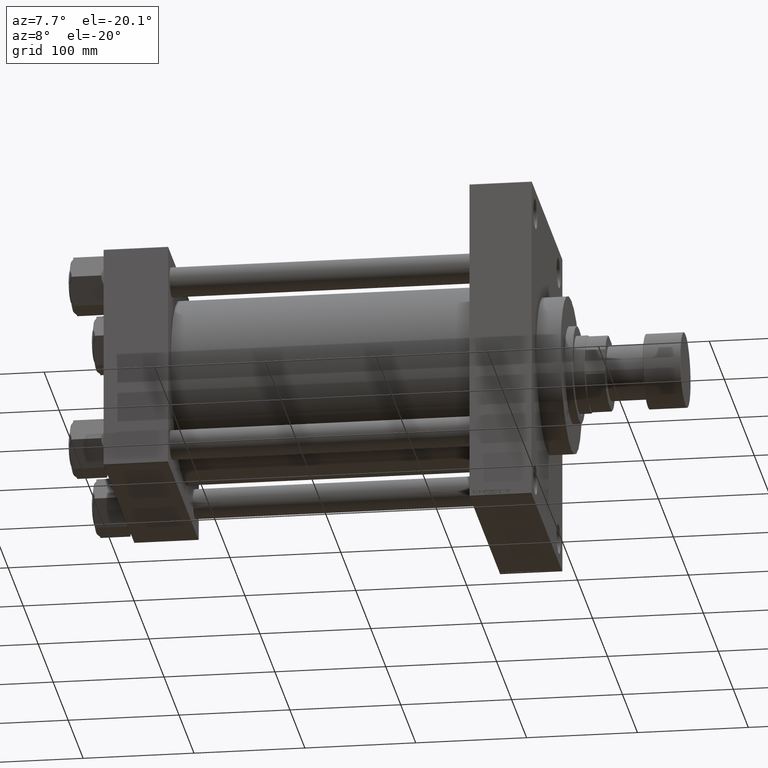
[diagram: clean part render]
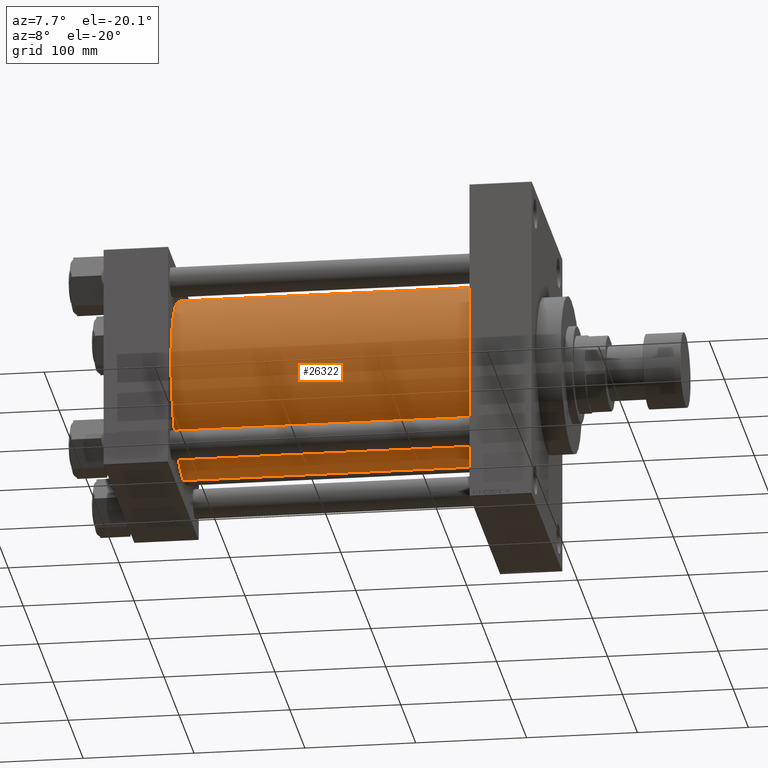
[diagram: same view with one face highlighted and labeled with its STEP entity id]
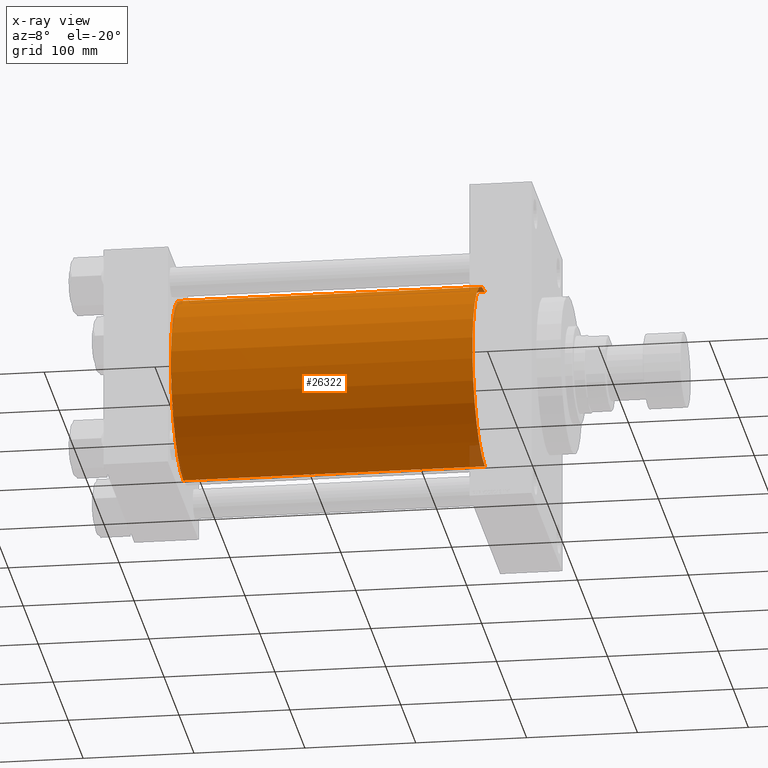
[diagram: x-ray of the same camera — body ghosted, the highlighted face saturated]
A machine part, auxiliary view. The second image highlights one B-rep face of the part: STEP entity #26322.
The next image is the same camera in x-ray: the body ghosted, the highlighted face saturated — about 1% of this face is hidden behind the body in this view.
In plain terms, the highlighted cylindrical surface (partial cylindrical patch) has radius 83 mm, axis along (-1, -0, -0).
Its self-contained STEP definition (entity closure, byte-faithful):
#534 = VERTEX_POINT ( 'NONE', #45623 ) ;
#1363 = CIRCLE ( 'NONE', #30235, 83.00000000000000000 ) ;
#1392 = AXIS2_PLACEMENT_3D ( 'NONE', #34914, #11980, #15649 ) ;
#3497 = LINE ( 'NONE', #11070, #7141 ) ;
#7141 = VECTOR ( 'NONE', #45255, 1000.000000000000000 ) ;
#9710 = CARTESIAN_POINT ( 'NONE',  ( 57.99999999999999289, -2.602085213965210642E-15, 0.000000000000000000 ) ) ;
#10246 = ORIENTED_EDGE ( 'NONE', *, *, #15123, .F. ) ;
#10683 = DIRECTION ( 'NONE',  ( 0.000000000000000000, 0.000000000000000000, 1.000000000000000000 ) ) ;
#11070 = CARTESIAN_POINT ( 'NONE',  ( 330.0000000000000000, -2.602085213965210642E-15, 83.00000000000000000 ) ) ;
#11980 = DIRECTION ( 'NONE',  ( 1.000000000000000000, 0.000000000000000000, 0.000000000000000000 ) ) ;
#12286 = VECTOR ( 'NONE', #34491, 1000.000000000000000 ) ;
#14806 = EDGE_CURVE ( 'NONE', #534, #15048, #1363, .T. ) ;
#15048 = VERTEX_POINT ( 'NONE', #23017 ) ;
#15123 = EDGE_CURVE ( 'NONE', #35594, #15048, #23497, .T. ) ;
#15241 = ORIENTED_EDGE ( 'NONE', *, *, #16002, .F. ) ;
#15649 = DIRECTION ( 'NONE',  ( 0.000000000000000000, 0.000000000000000000, -1.000000000000000000 ) ) ;
#15691 = EDGE_LOOP ( 'NONE', ( #10246, #15241, #37410, #31318 ) ) ;
#16002 = EDGE_CURVE ( 'NONE', #22546, #35594, #45840, .T. ) ;
#21147 = CARTESIAN_POINT ( 'NONE',  ( 330.0000000000000000, -2.602085213965210642E-15, 83.00000000000000000 ) ) ;
#22546 = VERTEX_POINT ( 'NONE', #21147 ) ;
#23017 = CARTESIAN_POINT ( 'NONE',  ( 57.99999999999999289, 7.562483218957820855E-15, -83.00000000000000000 ) ) ;
#23497 = LINE ( 'NONE', #31773, #12286 ) ;
#26322 = ADVANCED_FACE ( 'NONE', ( #33912 ), #30004, .T. ) ;
#27387 = EDGE_CURVE ( 'NONE', #22546, #534, #3497, .T. ) ;
#30004 = CYLINDRICAL_SURFACE ( 'NONE', #47646, 83.00000000000000000 ) ;
#30235 = AXIS2_PLACEMENT_3D ( 'NONE', #9710, #42682, #10683 ) ;
#31318 = ORIENTED_EDGE ( 'NONE', *, *, #14806, .T. ) ;
#31773 = CARTESIAN_POINT ( 'NONE',  ( 330.0000000000000000, 7.562483218957820855E-15, -83.00000000000000000 ) ) ;
#33912 = FACE_OUTER_BOUND ( 'NONE', #15691, .T. ) ;
#34491 = DIRECTION ( 'NONE',  ( -1.000000000000000000, -0.000000000000000000, -0.000000000000000000 ) ) ;
#34914 = CARTESIAN_POINT ( 'NONE',  ( 330.0000000000000000, -2.602085213965210642E-15, 0.000000000000000000 ) ) ;
#35594 = VERTEX_POINT ( 'NONE', #36025 ) ;
#36025 = CARTESIAN_POINT ( 'NONE',  ( 330.0000000000000000, 7.562483218957820855E-15, -83.00000000000000000 ) ) ;
#37410 = ORIENTED_EDGE ( 'NONE', *, *, #27387, .T. ) ;
#37560 = DIRECTION ( 'NONE',  ( 0.000000000000000000, 0.000000000000000000, 1.000000000000000000 ) ) ;
#41466 = CARTESIAN_POINT ( 'NONE',  ( 330.0000000000000000, -2.602085213965210642E-15, 0.000000000000000000 ) ) ;
#42682 = DIRECTION ( 'NONE',  ( 1.000000000000000000, -0.000000000000000000, -0.000000000000000000 ) ) ;
#45255 = DIRECTION ( 'NONE',  ( -1.000000000000000000, -0.000000000000000000, -0.000000000000000000 ) ) ;
#45371 = DIRECTION ( 'NONE',  ( -1.000000000000000000, -0.000000000000000000, -0.000000000000000000 ) ) ;
#45623 = CARTESIAN_POINT ( 'NONE',  ( 57.99999999999999289, -2.602085213965210642E-15, 83.00000000000000000 ) ) ;
#45840 = CIRCLE ( 'NONE', #1392, 83.00000000000000000 ) ;
#47646 = AXIS2_PLACEMENT_3D ( 'NONE', #41466, #45371, #37560 ) ;